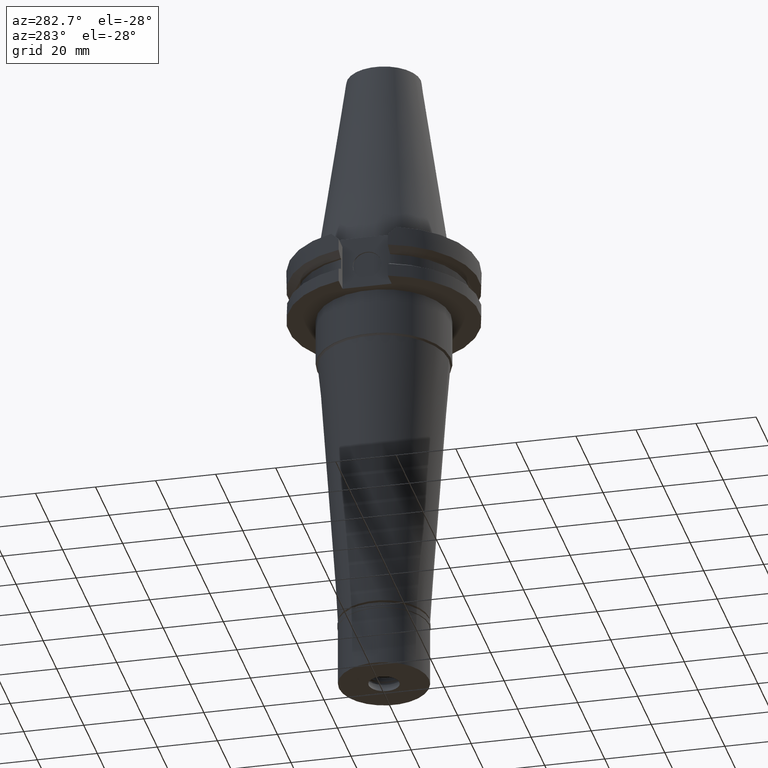
[diagram: clean part render]
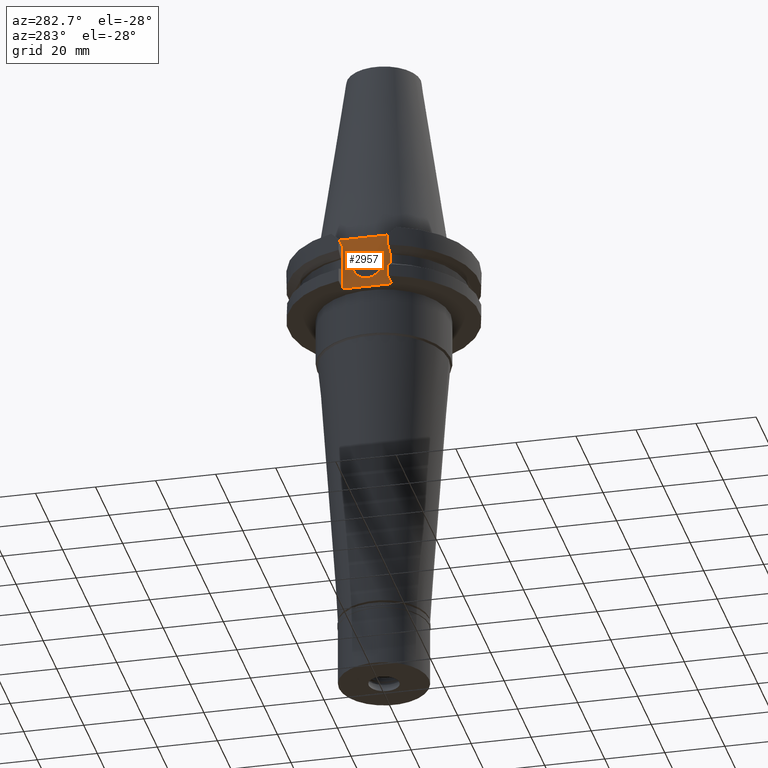
[diagram: same view with one face highlighted and labeled with its STEP entity id]
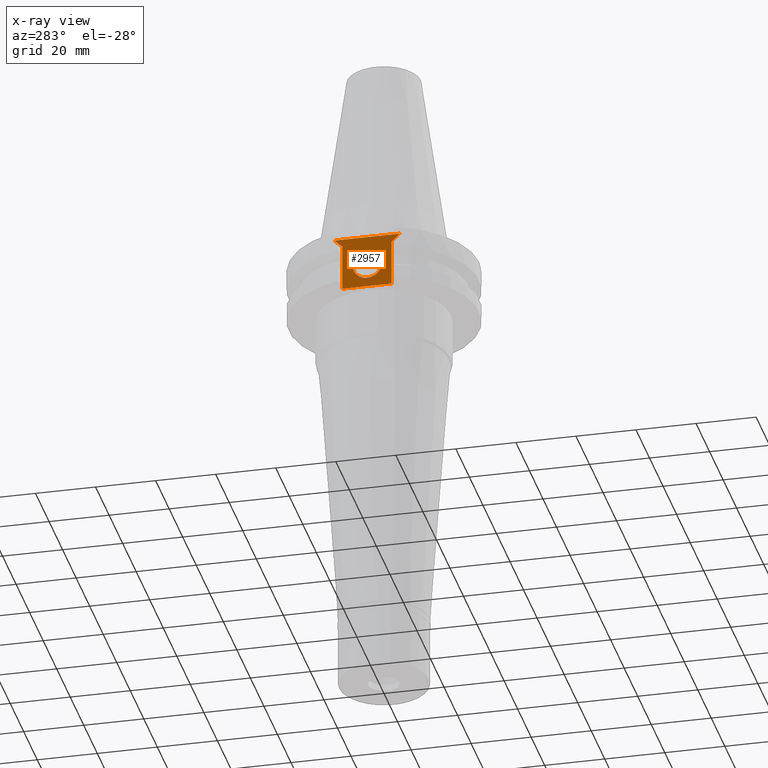
[diagram: x-ray of the same camera — body ghosted, the highlighted face saturated]
A machine part, auxiliary view. The second image highlights one B-rep face of the part: STEP entity #2957.
The next image is the same camera in x-ray: the body ghosted, the highlighted face saturated — about 0% of this face is hidden behind the body in this view.
In plain terms, the highlighted planar face has unit normal (1, 0, 0).
Its self-contained STEP definition (entity closure, byte-faithful):
#108 = VERTEX_POINT ( 'NONE', #1072 ) ;
#341 = VECTOR ( 'NONE', #1652, 1000.000000000000000 ) ;
#389 = EDGE_CURVE ( 'NONE', #1717, #2594, #3007, .T. ) ;
#391 = DIRECTION ( 'NONE',  ( 0.0000000000000000000, -1.000000000000000000, 0.0000000000000000000 ) ) ;
#620 = CARTESIAN_POINT ( 'NONE',  ( -24.98000000000000043, 8.189999999999999503, -3.700000000000000178 ) ) ;
#642 = ORIENTED_EDGE ( 'NONE', *, *, #2421, .T. ) ;
#674 = CARTESIAN_POINT ( 'NONE',  ( -24.98000000000000043, -8.189999999999999503, -19.05000000000000071 ) ) ;
#685 = CARTESIAN_POINT ( 'NONE',  ( -24.98000000000000043, 8.189999999999999503, -19.05000000000000071 ) ) ;
#752 = EDGE_CURVE ( 'NONE', #2594, #1462, #2676, .T. ) ;
#813 = ORIENTED_EDGE ( 'NONE', *, *, #2892, .F. ) ;
#836 = ORIENTED_EDGE ( 'NONE', *, *, #1208, .T. ) ;
#847 = VERTEX_POINT ( 'NONE', #674 ) ;
#866 = DIRECTION ( 'NONE',  ( -1.000000000000000000, 0.0000000000000000000, 0.0000000000000000000 ) ) ;
#918 = CARTESIAN_POINT ( 'NONE',  ( -24.98000000000000043, -4.762500000000000178, -11.18000000000000149 ) ) ;
#941 = CARTESIAN_POINT ( 'NONE',  ( -24.98000000000000043, 0.0000000000000000000, -11.18000000000000149 ) ) ;
#970 = EDGE_CURVE ( 'NONE', #1653, #2726, #3171, .T. ) ;
#1072 = CARTESIAN_POINT ( 'NONE',  ( -24.98000000000000043, 8.189999999999999503, -19.05000000000000071 ) ) ;
#1083 = DIRECTION ( 'NONE',  ( 0.0000000000000000000, 1.000000000000000000, 0.0000000000000000000 ) ) ;
#1126 = FACE_OUTER_BOUND ( 'NONE', #2477, .T. ) ;
#1208 = EDGE_CURVE ( 'NONE', #108, #847, #1464, .T. ) ;
#1217 = CARTESIAN_POINT ( 'NONE',  ( -24.98000000000000043, -8.189999999999999503, -19.05000000000000071 ) ) ;
#1237 = CARTESIAN_POINT ( 'NONE',  ( -24.98000000000000043, 10.89000000000000057, -1.000000000000000000 ) ) ;
#1347 = FACE_BOUND ( 'NONE', #1875, .T. ) ;
#1367 = DIRECTION ( 'NONE',  ( 0.0000000000000000000, 0.7071067811865474617, 0.7071067811865474617 ) ) ;
#1399 = CARTESIAN_POINT ( 'NONE',  ( -24.98000000000000043, 0.0000000000000000000, -11.18000000000000149 ) ) ;
#1436 = DIRECTION ( 'NONE',  ( 0.0000000000000000000, 0.0000000000000000000, 1.000000000000000000 ) ) ;
#1462 = VERTEX_POINT ( 'NONE', #1850 ) ;
#1464 = LINE ( 'NONE', #685, #341 ) ;
#1468 = VECTOR ( 'NONE', #2423, 1000.000000000000000 ) ;
#1474 = DIRECTION ( 'NONE',  ( 0.0000000000000000000, -1.000000000000000000, 0.0000000000000000000 ) ) ;
#1551 = CARTESIAN_POINT ( 'NONE',  ( -24.98000000000000043, 8.189999999999999503, -3.700000000000000178 ) ) ;
#1621 = DIRECTION ( 'NONE',  ( 0.0000000000000000000, 0.7071067811865474617, -0.7071067811865474617 ) ) ;
#1638 = CARTESIAN_POINT ( 'NONE',  ( -24.98000000000000043, -10.89000000000000057, -1.000000000000000000 ) ) ;
#1652 = DIRECTION ( 'NONE',  ( 0.0000000000000000000, -1.000000000000000000, 0.0000000000000000000 ) ) ;
#1653 = VERTEX_POINT ( 'NONE', #918 ) ;
#1662 = EDGE_CURVE ( 'NONE', #2726, #1653, #2402, .T. ) ;
#1717 = VERTEX_POINT ( 'NONE', #2956 ) ;
#1752 = VERTEX_POINT ( 'NONE', #1551 ) ;
#1850 = CARTESIAN_POINT ( 'NONE',  ( -24.98000000000000043, -8.189999999999999503, -3.700000000000000178 ) ) ;
#1870 = ORIENTED_EDGE ( 'NONE', *, *, #1662, .F. ) ;
#1875 = EDGE_LOOP ( 'NONE', ( #1926, #1870 ) ) ;
#1926 = ORIENTED_EDGE ( 'NONE', *, *, #970, .F. ) ;
#1929 = CARTESIAN_POINT ( 'NONE',  ( -24.98000000000000043, 0.0000000000000000000, 0.0000000000000000000 ) ) ;
#2159 = VECTOR ( 'NONE', #1367, 1000.000000000000114 ) ;
#2402 = CIRCLE ( 'NONE', #2838, 4.762500000000000178 ) ;
#2421 = EDGE_CURVE ( 'NONE', #847, #1462, #2759, .T. ) ;
#2423 = DIRECTION ( 'NONE',  ( 0.0000000000000000000, 0.0000000000000000000, -1.000000000000000000 ) ) ;
#2477 = EDGE_LOOP ( 'NONE', ( #642, #3153, #3130, #813, #2673, #836 ) ) ;
#2584 = CARTESIAN_POINT ( 'NONE',  ( -24.98000000000000043, 8.189999999999999503, -3.700000000000000178 ) ) ;
#2594 = VERTEX_POINT ( 'NONE', #2786 ) ;
#2673 = ORIENTED_EDGE ( 'NONE', *, *, #3334, .T. ) ;
#2676 = LINE ( 'NONE', #1638, #3278 ) ;
#2693 = PLANE ( 'NONE',  #2815 ) ;
#2714 = VECTOR ( 'NONE', #1436, 1000.000000000000000 ) ;
#2726 = VERTEX_POINT ( 'NONE', #2876 ) ;
#2756 = DIRECTION ( 'NONE',  ( 0.0000000000000000000, 1.000000000000000000, 0.0000000000000000000 ) ) ;
#2759 = LINE ( 'NONE', #1217, #2714 ) ;
#2786 = CARTESIAN_POINT ( 'NONE',  ( -24.98000000000000043, -10.89000000000000057, -1.000000000000000000 ) ) ;
#2815 = AXIS2_PLACEMENT_3D ( 'NONE', #1929, #2963, #1083 ) ;
#2838 = AXIS2_PLACEMENT_3D ( 'NONE', #941, #866, #2756 ) ;
#2876 = CARTESIAN_POINT ( 'NONE',  ( -24.98000000000000043, 4.762500000000000178, -11.18000000000000149 ) ) ;
#2892 = EDGE_CURVE ( 'NONE', #1752, #1717, #3214, .T. ) ;
#2956 = CARTESIAN_POINT ( 'NONE',  ( -24.98000000000000043, 10.89000000000000057, -1.000000000000000000 ) ) ;
#2957 = ADVANCED_FACE ( 'NONE', ( #1126, #1347 ), #2693, .F. ) ;
#2963 = DIRECTION ( 'NONE',  ( 1.000000000000000000, 0.0000000000000000000, 0.0000000000000000000 ) ) ;
#3007 = LINE ( 'NONE', #1237, #3228 ) ;
#3130 = ORIENTED_EDGE ( 'NONE', *, *, #389, .F. ) ;
#3153 = ORIENTED_EDGE ( 'NONE', *, *, #752, .F. ) ;
#3171 = CIRCLE ( 'NONE', #3332, 4.762500000000000178 ) ;
#3214 = LINE ( 'NONE', #620, #2159 ) ;
#3228 = VECTOR ( 'NONE', #391, 1000.000000000000000 ) ;
#3249 = DIRECTION ( 'NONE',  ( -1.000000000000000000, 0.0000000000000000000, 0.0000000000000000000 ) ) ;
#3278 = VECTOR ( 'NONE', #1621, 1000.000000000000114 ) ;
#3332 = AXIS2_PLACEMENT_3D ( 'NONE', #1399, #3249, #1474 ) ;
#3334 = EDGE_CURVE ( 'NONE', #1752, #108, #3349, .T. ) ;
#3349 = LINE ( 'NONE', #2584, #1468 ) ;